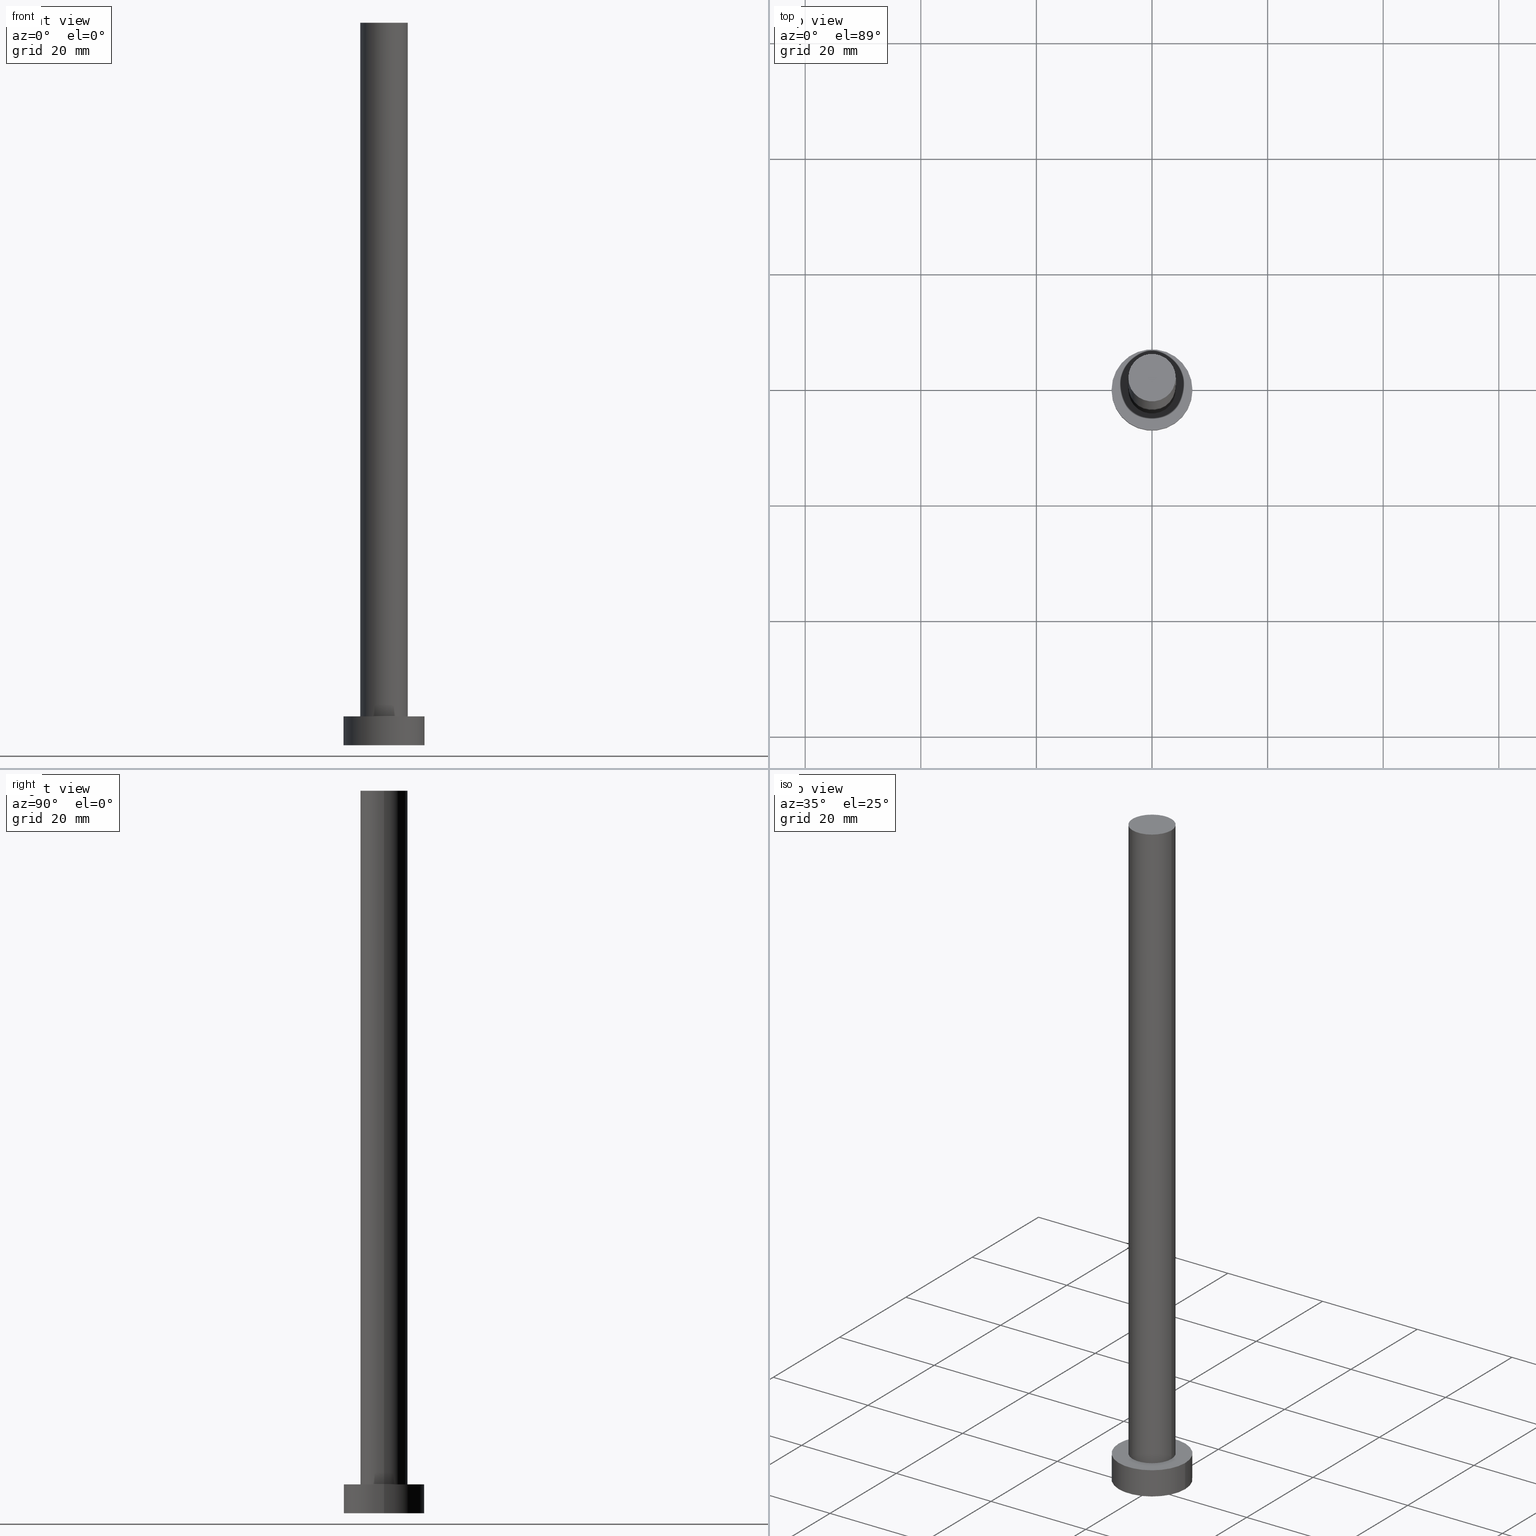
[diagram: canonical four-view strip — front | top / right | iso, engineering-drawing reading convention]
A machine part, canonical four-view strip (front | top / right | iso — engineering-drawing reading convention). The complete STEP part file that produces these views, byte-faithful:
ISO-10303-21;
HEADER;
FILE_DESCRIPTION (( 'STEP AP203' ),
    '1' );
FILE_NAME ('61f3.STEP',
    '2023-02-13T14:21:41',
    ( '' ),
    ( '' ),
    'SwSTEP 2.0',
    'SolidWorks 2019',
    '' );
FILE_SCHEMA (( 'CONFIG_CONTROL_DESIGN' ));
ENDSEC;

DATA;
#1 = ADVANCED_FACE ( 'NONE', ( #138 ), #180, .T. ) ;
#2 = ORIENTED_EDGE ( 'NONE', *, *, #161, .T. ) ;
#3 = EDGE_CURVE ( 'NONE', #215, #198, #219, .T. ) ;
#4 = ORIENTED_EDGE ( 'NONE', *, *, #154, .T. ) ;
#5 = ORIENTED_EDGE ( 'NONE', *, *, #237, .F. ) ;
#6 = CALENDAR_DATE ( 2023, 13, 2 ) ;
#7 = PERSON_AND_ORGANIZATION_ROLE ( 'design_owner' ) ;
#8 = DIRECTION ( 'NONE',  ( 1.000000000000000000, 0.000000000000000000, 0.000000000000000000 ) ) ;
#9 = SHAPE_DEFINITION_REPRESENTATION ( #151, #120 ) ;
#10 = ADVANCED_FACE ( 'NONE', ( #160 ), #117, .T. ) ;
#11 = SECURITY_CLASSIFICATION_LEVEL ( 'unclassified' ) ;
#12 = AXIS2_PLACEMENT_3D ( 'NONE', #190, #28, #8 ) ;
#13 = LOCAL_TIME ( 15, 21, 41.00000000000000000, #167 ) ;
#14 = CARTESIAN_POINT ( 'NONE',  ( 4.099999999999999645, 5.021051876504147385E-16, 125.0000000000000000 ) ) ;
#15 = FACE_BOUND ( 'NONE', #118, .T. ) ;
#16 = APPROVAL_ROLE ( '' ) ;
#17 = CYLINDRICAL_SURFACE ( 'NONE', #93, 4.099999999999999645 ) ;
#18 = CIRCLE ( 'NONE', #209, 4.099999999999999645 ) ;
#19 = VERTEX_POINT ( 'NONE', #199 ) ;
#20 = ADVANCED_FACE ( 'NONE', ( #200 ), #183, .T. ) ;
#21 = DIRECTION ( 'NONE',  ( -0.000000000000000000, -0.000000000000000000, -1.000000000000000000 ) ) ;
#22 = CIRCLE ( 'NONE', #142, 4.099999999999999645 ) ;
#23 = CARTESIAN_POINT ( 'NONE',  ( 0.000000000000000000, 0.000000000000000000, 0.000000000000000000 ) ) ;
#24 = DIRECTION ( 'NONE',  ( 0.000000000000000000, 0.000000000000000000, 1.000000000000000000 ) ) ;
#25 = DIRECTION ( 'NONE',  ( 1.000000000000000000, 0.000000000000000000, 0.000000000000000000 ) ) ;
#26 = AXIS2_PLACEMENT_3D ( 'NONE', #238, #21, #234 ) ;
#27 = UNCERTAINTY_MEASURE_WITH_UNIT (LENGTH_MEASURE( 1.000000000000000082E-05 ), #228, 'distance_accuracy_value', 'NONE');
#28 = DIRECTION ( 'NONE',  ( 0.000000000000000000, 0.000000000000000000, 1.000000000000000000 ) ) ;
#29 = DIRECTION ( 'NONE',  ( 0.000000000000000000, 0.000000000000000000, 1.000000000000000000 ) ) ;
#30 = PERSON_AND_ORGANIZATION ( #81, #208 ) ;
#31 = CC_DESIGN_DATE_AND_TIME_ASSIGNMENT ( #241, #123, ( #189 ) ) ;
#32 = CARTESIAN_POINT ( 'NONE',  ( 0.000000000000000000, 0.000000000000000000, 5.000000000000000000 ) ) ;
#33 = AXIS2_PLACEMENT_3D ( 'NONE', #197, #121, #236 ) ;
#34 = FACE_OUTER_BOUND ( 'NONE', #218, .T. ) ;
#35 = VECTOR ( 'NONE', #225, 1000.000000000000000 ) ;
#36 = ORIENTED_EDGE ( 'NONE', *, *, #3, .F. ) ;
#37 =( NAMED_UNIT ( * ) SI_UNIT ( $, .STERADIAN. ) SOLID_ANGLE_UNIT ( ) );
#38 = VERTEX_POINT ( 'NONE', #213 ) ;
#39 = MECHANICAL_CONTEXT ( 'NONE', #52, 'mechanical' ) ;
#40 = DIRECTION ( 'NONE',  ( -0.000000000000000000, -0.000000000000000000, -1.000000000000000000 ) ) ;
#41 = LOCAL_TIME ( 15, 21, 41.00000000000000000, #250 ) ;
#42 = ORIENTED_EDGE ( 'NONE', *, *, #220, .F. ) ;
#43 = PERSON_AND_ORGANIZATION ( #81, #208 ) ;
#44 = APPROVAL_DATE_TIME ( #143, #67 ) ;
#45 = AXIS2_PLACEMENT_3D ( 'NONE', #83, #76, #173 ) ;
#46 = DATE_AND_TIME ( #128, #50 ) ;
#47 = EDGE_CURVE ( 'NONE', #38, #240, #216, .T. ) ;
#48 = AXIS2_PLACEMENT_3D ( 'NONE', #96, #169, #204 ) ;
#49 = ORIENTED_EDGE ( 'NONE', *, *, #154, .F. ) ;
#50 = LOCAL_TIME ( 15, 21, 41.00000000000000000, #115 ) ;
#51 = AXIS2_PLACEMENT_3D ( 'NONE', #82, #192, #248 ) ;
#52 = APPLICATION_CONTEXT ( 'configuration controlled 3d designs of mechanical parts and assemblies' ) ;
#53 = ORIENTED_EDGE ( 'NONE', *, *, #127, .F. ) ;
#54 = LOCAL_TIME ( 15, 21, 41.00000000000000000, #147 ) ;
#55 = LINE ( 'NONE', #149, #35 ) ;
#56 = PERSON_AND_ORGANIZATION_ROLE ( 'creator' ) ;
#57 = EDGE_CURVE ( 'NONE', #19, #72, #245, .T. ) ;
#58 = DIRECTION ( 'NONE',  ( 1.000000000000000000, 0.000000000000000000, 0.000000000000000000 ) ) ;
#59 = APPROVAL ( #60, 'NEUR�EN�' ) ;
#60 = APPROVAL_STATUS ( 'not_yet_approved' ) ;
#61 = DIRECTION ( 'NONE',  ( -1.000000000000000000, 0.000000000000000000, 0.000000000000000000 ) ) ;
#62 = VECTOR ( 'NONE', #40, 1000.000000000000000 ) ;
#63 = CARTESIAN_POINT ( 'NONE',  ( 4.099999999999999645, 5.021051876504147385E-16, 5.000000000000000000 ) ) ;
#64 = DIRECTION ( 'NONE',  ( 1.000000000000000000, 0.000000000000000000, -0.000000000000000000 ) ) ;
#65 = CIRCLE ( 'NONE', #45, 7.000000000000000000 ) ;
#66 = CLOSED_SHELL ( 'NONE', ( #100, #10, #1, #91, #74, #20, #253 ) ) ;
#67 = APPROVAL ( #95, 'NEUR�EN�' ) ;
#68 = DIRECTION ( 'NONE',  ( -1.000000000000000000, 0.000000000000000000, 0.000000000000000000 ) ) ;
#69 = ORIENTED_EDGE ( 'NONE', *, *, #3, .T. ) ;
#70 = LOCAL_TIME ( 15, 21, 41.00000000000000000, #191 ) ;
#71 = EDGE_CURVE ( 'NONE', #198, #116, #22, .T. ) ;
#72 = VERTEX_POINT ( 'NONE', #104 ) ;
#73 = ORIENTED_EDGE ( 'NONE', *, *, #57, .T. ) ;
#74 = ADVANCED_FACE ( 'NONE', ( #34 ), #231, .F. ) ;
#75 = PERSON_AND_ORGANIZATION ( #81, #208 ) ;
#76 = DIRECTION ( 'NONE',  ( 0.000000000000000000, 0.000000000000000000, 1.000000000000000000 ) ) ;
#77 = CARTESIAN_POINT ( 'NONE',  ( -4.099999999999999645, 0.000000000000000000, 5.000000000000000000 ) ) ;
#78 = PERSON_AND_ORGANIZATION ( #81, #208 ) ;
#79 = PERSON_AND_ORGANIZATION ( #81, #208 ) ;
#80 = APPROVAL_PERSON_ORGANIZATION ( #43, #67, #185 ) ;
#81 = PERSON ( 'NEUR�EN�', 'NEUR�EN�', 'NEUR�EN�', ('NEUR�EN�'), ('NEUR�EN�'), ('NEUR�EN�') ) ;
#82 = CARTESIAN_POINT ( 'NONE',  ( 0.000000000000000000, 0.000000000000000000, 0.000000000000000000 ) ) ;
#83 = CARTESIAN_POINT ( 'NONE',  ( 0.000000000000000000, 0.000000000000000000, 5.000000000000000000 ) ) ;
#84 = CARTESIAN_POINT ( 'NONE',  ( 0.000000000000000000, 0.000000000000000000, 125.0000000000000000 ) ) ;
#85 = CALENDAR_DATE ( 2023, 13, 2 ) ;
#86 = FACE_OUTER_BOUND ( 'NONE', #92, .T. ) ;
#87 = DIRECTION ( 'NONE',  ( -0.000000000000000000, -0.000000000000000000, -1.000000000000000000 ) ) ;
#88 = EDGE_LOOP ( 'NONE', ( #141, #178 ) ) ;
#89 = AXIS2_PLACEMENT_3D ( 'NONE', #136, #179, #68 ) ;
#90 = EDGE_LOOP ( 'NONE', ( #53, #73, #239, #122 ) ) ;
#91 = ADVANCED_FACE ( 'NONE', ( #15, #86 ), #175, .T. ) ;
#92 = EDGE_LOOP ( 'NONE', ( #227, #163 ) ) ;
#93 = AXIS2_PLACEMENT_3D ( 'NONE', #212, #87, #61 ) ;
#94 = PRODUCT_RELATED_PRODUCT_CATEGORY ( 'detail', '', ( #193 ) ) ;
#95 = APPROVAL_STATUS ( 'not_yet_approved' ) ;
#96 = CARTESIAN_POINT ( 'NONE',  ( 0.000000000000000000, 0.000000000000000000, 5.000000000000000000 ) ) ;
#97 = DIRECTION ( 'NONE',  ( 0.000000000000000000, 0.000000000000000000, 1.000000000000000000 ) ) ;
#98 = APPROVAL_PERSON_ORGANIZATION ( #75, #59, #171 ) ;
#99 = DIRECTION ( 'NONE',  ( 1.000000000000000000, 0.000000000000000000, 0.000000000000000000 ) ) ;
#100 = ADVANCED_FACE ( 'NONE', ( #113 ), #17, .T. ) ;
#101 = APPROVAL_DATE_TIME ( #126, #205 ) ;
#102 = DESIGN_CONTEXT ( 'detailed design', #155, 'design' ) ;
#103 = VECTOR ( 'NONE', #146, 1000.000000000000000 ) ;
#104 = CARTESIAN_POINT ( 'NONE',  ( 7.000000000000000000, 8.572527594031473190E-16, 0.000000000000000000 ) ) ;
#105 = ORIENTED_EDGE ( 'NONE', *, *, #71, .T. ) ;
#106 = PERSON_AND_ORGANIZATION ( #81, #208 ) ;
#107 = DIRECTION ( 'NONE',  ( 1.000000000000000000, 0.000000000000000000, -0.000000000000000000 ) ) ;
#108 = VECTOR ( 'NONE', #188, 1000.000000000000000 ) ;
#109 = APPROVAL_STATUS ( 'not_yet_approved' ) ;
#110 = APPROVAL_DATE_TIME ( #129, #59 ) ;
#111 = EDGE_CURVE ( 'NONE', #215, #137, #211, .T. ) ;
#112 = PERSON_AND_ORGANIZATION_ROLE ( 'design_supplier' ) ;
#113 = FACE_OUTER_BOUND ( 'NONE', #221, .T. ) ;
#114 = DIRECTION ( 'NONE',  ( 0.000000000000000000, 0.000000000000000000, 1.000000000000000000 ) ) ;
#115 = COORDINATED_UNIVERSAL_TIME_OFFSET ( 1, 0, .AHEAD. ) ;
#116 = VERTEX_POINT ( 'NONE', #77 ) ;
#117 = CYLINDRICAL_SURFACE ( 'NONE', #89, 7.000000000000000000 ) ;
#118 = EDGE_LOOP ( 'NONE', ( #242, #182 ) ) ;
#119 = ORIENTED_EDGE ( 'NONE', *, *, #57, .F. ) ;
#120 = ADVANCED_BREP_SHAPE_REPRESENTATION ( '61f3', ( #214, #194 ), #243 ) ;
#121 = DIRECTION ( 'NONE',  ( -0.000000000000000000, -0.000000000000000000, -1.000000000000000000 ) ) ;
#122 = ORIENTED_EDGE ( 'NONE', *, *, #47, .F. ) ;
#123 = DATE_TIME_ROLE ( 'creation_date' ) ;
#124 = APPLICATION_PROTOCOL_DEFINITION ( 'international standard', 'config_control_design', 1994, #155 ) ;
#125 = EDGE_LOOP ( 'NONE', ( #119, #42, #217, #2 ) ) ;
#126 = DATE_AND_TIME ( #85, #41 ) ;
#127 = EDGE_CURVE ( 'NONE', #19, #38, #139, .T. ) ;
#128 = CALENDAR_DATE ( 2023, 13, 2 ) ;
#129 = DATE_AND_TIME ( #249, #54 ) ;
#130 = AXIS2_PLACEMENT_3D ( 'NONE', #32, #254, #210 ) ;
#131 = CARTESIAN_POINT ( 'NONE',  ( 0.000000000000000000, 0.000000000000000000, 125.0000000000000000 ) ) ;
#132 = APPROVAL_PERSON_ORGANIZATION ( #30, #205, #16 ) ;
#133 = DIRECTION ( 'NONE',  ( 1.000000000000000000, 0.000000000000000000, 0.000000000000000000 ) ) ;
#134 = CARTESIAN_POINT ( 'NONE',  ( 4.099999999999999645, 5.021051876504147385E-16, 125.0000000000000000 ) ) ;
#135 = CIRCLE ( 'NONE', #51, 7.000000000000000000 ) ;
#136 = CARTESIAN_POINT ( 'NONE',  ( 0.000000000000000000, 0.000000000000000000, 5.000000000000000000 ) ) ;
#137 = VERTEX_POINT ( 'NONE', #186 ) ;
#138 = FACE_OUTER_BOUND ( 'NONE', #125, .T. ) ;
#139 = CIRCLE ( 'NONE', #48, 7.000000000000000000 ) ;
#140 = AXIS2_PLACEMENT_3D ( 'NONE', #131, #176, #133 ) ;
#141 = ORIENTED_EDGE ( 'NONE', *, *, #237, .T. ) ;
#142 = AXIS2_PLACEMENT_3D ( 'NONE', #223, #203, #25 ) ;
#143 = DATE_AND_TIME ( #6, #70 ) ;
#144 = CARTESIAN_POINT ( 'NONE',  ( 0.000000000000000000, 0.000000000000000000, 0.000000000000000000 ) ) ;
#145 = PERSON_AND_ORGANIZATION ( #81, #208 ) ;
#146 = DIRECTION ( 'NONE',  ( -0.000000000000000000, -0.000000000000000000, -1.000000000000000000 ) ) ;
#147 = COORDINATED_UNIVERSAL_TIME_OFFSET ( 1, 0, .AHEAD. ) ;
#148 = AXIS2_PLACEMENT_3D ( 'NONE', #84, #114, #64 ) ;
#149 = CARTESIAN_POINT ( 'NONE',  ( -4.099999999999999645, 0.000000000000000000, 125.0000000000000000 ) ) ;
#150 = CC_DESIGN_DATE_AND_TIME_ASSIGNMENT ( #46, #206, ( #166 ) ) ;
#151 = PRODUCT_DEFINITION_SHAPE ( 'NONE', 'NONE',  #189 ) ;
#152 = EDGE_CURVE ( 'NONE', #116, #198, #18, .T. ) ;
#153 = CC_DESIGN_APPROVAL ( #205, ( #166 ) ) ;
#154 = EDGE_CURVE ( 'NONE', #137, #116, #55, .T. ) ;
#155 = APPLICATION_CONTEXT ( 'configuration controlled 3d designs of mechanical parts and assemblies' ) ;
#156 = CC_DESIGN_PERSON_AND_ORGANIZATION_ASSIGNMENT ( #78, #56, ( #189 ) ) ;
#157 = EDGE_LOOP ( 'NONE', ( #36, #5, #4, #164 ) ) ;
#158 = ORIENTED_EDGE ( 'NONE', *, *, #111, .F. ) ;
#159 = CIRCLE ( 'NONE', #140, 4.099999999999999645 ) ;
#160 = FACE_OUTER_BOUND ( 'NONE', #90, .T. ) ;
#161 = EDGE_CURVE ( 'NONE', #240, #72, #135, .T. ) ;
#162 = ORIENTED_EDGE ( 'NONE', *, *, #224, .F. ) ;
#163 = ORIENTED_EDGE ( 'NONE', *, *, #127, .T. ) ;
#164 = ORIENTED_EDGE ( 'NONE', *, *, #152, .T. ) ;
#165 =( NAMED_UNIT ( * ) PLANE_ANGLE_UNIT ( ) SI_UNIT ( $, .RADIAN. ) );
#166 = SECURITY_CLASSIFICATION ( '', '', #11 ) ;
#167 = COORDINATED_UNIVERSAL_TIME_OFFSET ( 1, 0, .AHEAD. ) ;
#168 = CARTESIAN_POINT ( 'NONE',  ( 7.000000000000000000, 8.572527594031473190E-16, 5.000000000000000000 ) ) ;
#169 = DIRECTION ( 'NONE',  ( 0.000000000000000000, 0.000000000000000000, 1.000000000000000000 ) ) ;
#170 = APPLICATION_PROTOCOL_DEFINITION ( 'international standard', 'config_control_design', 1994, #52 ) ;
#171 = APPROVAL_ROLE ( '' ) ;
#172 = DIRECTION ( 'NONE',  ( 0.000000000000000000, 0.000000000000000000, 1.000000000000000000 ) ) ;
#173 = DIRECTION ( 'NONE',  ( 1.000000000000000000, 0.000000000000000000, 0.000000000000000000 ) ) ;
#174 = CC_DESIGN_SECURITY_CLASSIFICATION ( #166, ( #246 ) ) ;
#175 = PLANE ( 'NONE',  #130 ) ;
#176 = DIRECTION ( 'NONE',  ( 0.000000000000000000, 0.000000000000000000, 1.000000000000000000 ) ) ;
#177 = FACE_OUTER_BOUND ( 'NONE', #88, .T. ) ;
#178 = ORIENTED_EDGE ( 'NONE', *, *, #111, .T. ) ;
#179 = DIRECTION ( 'NONE',  ( -0.000000000000000000, -0.000000000000000000, -1.000000000000000000 ) ) ;
#180 = CYLINDRICAL_SURFACE ( 'NONE', #33, 7.000000000000000000 ) ;
#181 = CALENDAR_DATE ( 2023, 13, 2 ) ;
#182 = ORIENTED_EDGE ( 'NONE', *, *, #71, .F. ) ;
#183 = CYLINDRICAL_SURFACE ( 'NONE', #26, 4.099999999999999645 ) ;
#184 = CC_DESIGN_PERSON_AND_ORGANIZATION_ASSIGNMENT ( #79, #247, ( #166 ) ) ;
#185 = APPROVAL_ROLE ( '' ) ;
#186 = CARTESIAN_POINT ( 'NONE',  ( -4.099999999999999645, 0.000000000000000000, 125.0000000000000000 ) ) ;
#187 = DIRECTION ( 'NONE',  ( 1.000000000000000000, 0.000000000000000000, 0.000000000000000000 ) ) ;
#188 = DIRECTION ( 'NONE',  ( -0.000000000000000000, -0.000000000000000000, -1.000000000000000000 ) ) ;
#189 = PRODUCT_DEFINITION ( 'NEZN�M�', '', #246, #102 ) ;
#190 = CARTESIAN_POINT ( 'NONE',  ( 0.000000000000000000, 0.000000000000000000, 125.0000000000000000 ) ) ;
#191 = COORDINATED_UNIVERSAL_TIME_OFFSET ( 1, 0, .AHEAD. ) ;
#192 = DIRECTION ( 'NONE',  ( 0.000000000000000000, 0.000000000000000000, 1.000000000000000000 ) ) ;
#193 = PRODUCT ( '61f3', '61f3', '', ( #39 ) ) ;
#194 = AXIS2_PLACEMENT_3D ( 'NONE', #23, #97, #187 ) ;
#195 = CC_DESIGN_PERSON_AND_ORGANIZATION_ASSIGNMENT ( #229, #112, ( #246 ) ) ;
#196 = ORIENTED_EDGE ( 'NONE', *, *, #161, .F. ) ;
#197 = CARTESIAN_POINT ( 'NONE',  ( 0.000000000000000000, 0.000000000000000000, 5.000000000000000000 ) ) ;
#198 = VERTEX_POINT ( 'NONE', #63 ) ;
#199 = CARTESIAN_POINT ( 'NONE',  ( 7.000000000000000000, 8.572527594031473190E-16, 5.000000000000000000 ) ) ;
#200 = FACE_OUTER_BOUND ( 'NONE', #157, .T. ) ;
#201 = CARTESIAN_POINT ( 'NONE',  ( -7.000000000000000000, 0.000000000000000000, 5.000000000000000000 ) ) ;
#202 = CIRCLE ( 'NONE', #251, 7.000000000000000000 ) ;
#203 = DIRECTION ( 'NONE',  ( 0.000000000000000000, 0.000000000000000000, 1.000000000000000000 ) ) ;
#204 = DIRECTION ( 'NONE',  ( 1.000000000000000000, 0.000000000000000000, 0.000000000000000000 ) ) ;
#205 = APPROVAL ( #109, 'NEUR�EN�' ) ;
#206 = DATE_TIME_ROLE ( 'classification_date' ) ;
#207 = CARTESIAN_POINT ( 'NONE',  ( 0.000000000000000000, 0.000000000000000000, 0.000000000000000000 ) ) ;
#208 = ORGANIZATION ( 'NEUR�EN�', 'NEUR�EN�', '' ) ;
#209 = AXIS2_PLACEMENT_3D ( 'NONE', #222, #29, #58 ) ;
#210 = DIRECTION ( 'NONE',  ( 1.000000000000000000, 0.000000000000000000, -0.000000000000000000 ) ) ;
#211 = CIRCLE ( 'NONE', #12, 4.099999999999999645 ) ;
#212 = CARTESIAN_POINT ( 'NONE',  ( 0.000000000000000000, 0.000000000000000000, 125.0000000000000000 ) ) ;
#213 = CARTESIAN_POINT ( 'NONE',  ( -7.000000000000000000, 0.000000000000000000, 5.000000000000000000 ) ) ;
#214 = MANIFOLD_SOLID_BREP ( 'P�idat vysunut�m3', #66 ) ;
#215 = VERTEX_POINT ( 'NONE', #14 ) ;
#216 = LINE ( 'NONE', #201, #108 ) ;
#217 = ORIENTED_EDGE ( 'NONE', *, *, #47, .T. ) ;
#218 = EDGE_LOOP ( 'NONE', ( #196, #162 ) ) ;
#219 = LINE ( 'NONE', #134, #62 ) ;
#220 = EDGE_CURVE ( 'NONE', #38, #19, #65, .T. ) ;
#221 = EDGE_LOOP ( 'NONE', ( #158, #69, #105, #49 ) ) ;
#222 = CARTESIAN_POINT ( 'NONE',  ( 0.000000000000000000, 0.000000000000000000, 5.000000000000000000 ) ) ;
#223 = CARTESIAN_POINT ( 'NONE',  ( 0.000000000000000000, 0.000000000000000000, 5.000000000000000000 ) ) ;
#224 = EDGE_CURVE ( 'NONE', #72, #240, #202, .T. ) ;
#225 = DIRECTION ( 'NONE',  ( -0.000000000000000000, -0.000000000000000000, -1.000000000000000000 ) ) ;
#226 = CC_DESIGN_APPROVAL ( #59, ( #246 ) ) ;
#227 = ORIENTED_EDGE ( 'NONE', *, *, #220, .T. ) ;
#228 =( LENGTH_UNIT ( ) NAMED_UNIT ( * ) SI_UNIT ( .MILLI., .METRE. ) );
#229 = PERSON_AND_ORGANIZATION ( #81, #208 ) ;
#230 = CC_DESIGN_PERSON_AND_ORGANIZATION_ASSIGNMENT ( #145, #7, ( #193 ) ) ;
#231 = PLANE ( 'NONE',  #244 ) ;
#232 = CC_DESIGN_PERSON_AND_ORGANIZATION_ASSIGNMENT ( #106, #252, ( #246 ) ) ;
#233 = CC_DESIGN_APPROVAL ( #67, ( #189 ) ) ;
#234 = DIRECTION ( 'NONE',  ( -1.000000000000000000, 0.000000000000000000, 0.000000000000000000 ) ) ;
#235 = PLANE ( 'NONE',  #148 ) ;
#236 = DIRECTION ( 'NONE',  ( -1.000000000000000000, 0.000000000000000000, 0.000000000000000000 ) ) ;
#237 = EDGE_CURVE ( 'NONE', #137, #215, #159, .T. ) ;
#238 = CARTESIAN_POINT ( 'NONE',  ( 0.000000000000000000, 0.000000000000000000, 125.0000000000000000 ) ) ;
#239 = ORIENTED_EDGE ( 'NONE', *, *, #224, .T. ) ;
#240 = VERTEX_POINT ( 'NONE', #255 ) ;
#241 = DATE_AND_TIME ( #181, #13 ) ;
#242 = ORIENTED_EDGE ( 'NONE', *, *, #152, .F. ) ;
#243 =( GEOMETRIC_REPRESENTATION_CONTEXT ( 3 ) GLOBAL_UNCERTAINTY_ASSIGNED_CONTEXT ( ( #27 ) ) GLOBAL_UNIT_ASSIGNED_CONTEXT ( ( #228, #165, #37 ) ) REPRESENTATION_CONTEXT ( 'NONE', 'WORKASPACE' ) );
#244 = AXIS2_PLACEMENT_3D ( 'NONE', #207, #172, #107 ) ;
#245 = LINE ( 'NONE', #168, #103 ) ;
#246 = PRODUCT_DEFINITION_FORMATION_WITH_SPECIFIED_SOURCE ( 'LIBOVOLN�', '', #193, .NOT_KNOWN. ) ;
#247 = PERSON_AND_ORGANIZATION_ROLE ( 'classification_officer' ) ;
#248 = DIRECTION ( 'NONE',  ( 1.000000000000000000, 0.000000000000000000, 0.000000000000000000 ) ) ;
#249 = CALENDAR_DATE ( 2023, 13, 2 ) ;
#250 = COORDINATED_UNIVERSAL_TIME_OFFSET ( 1, 0, .AHEAD. ) ;
#251 = AXIS2_PLACEMENT_3D ( 'NONE', #144, #24, #99 ) ;
#252 = PERSON_AND_ORGANIZATION_ROLE ( 'creator' ) ;
#253 = ADVANCED_FACE ( 'NONE', ( #177 ), #235, .T. ) ;
#254 = DIRECTION ( 'NONE',  ( 0.000000000000000000, 0.000000000000000000, 1.000000000000000000 ) ) ;
#255 = CARTESIAN_POINT ( 'NONE',  ( -7.000000000000000000, 0.000000000000000000, 0.000000000000000000 ) ) ;
ENDSEC;
END-ISO-10303-21;
